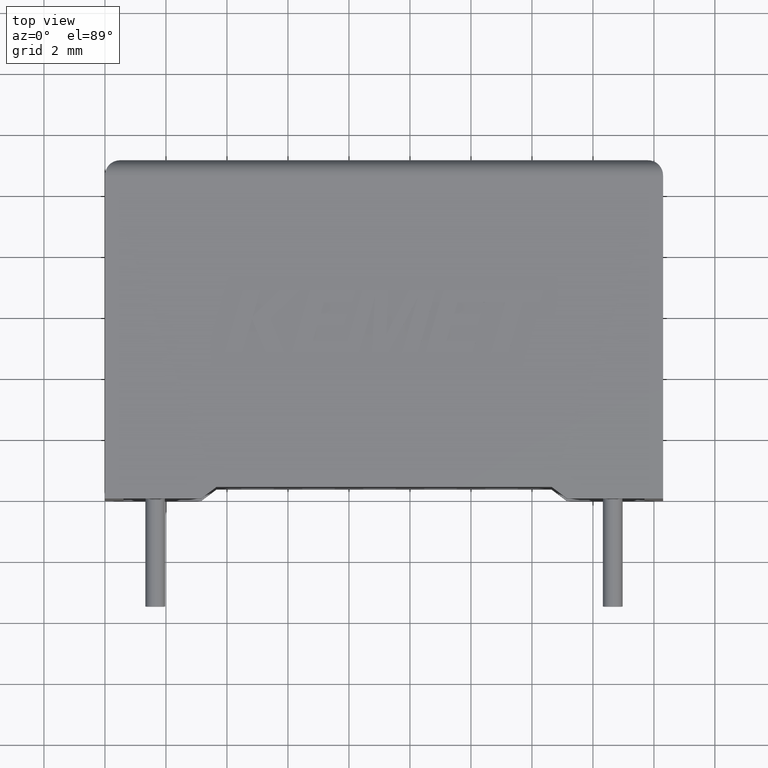
[diagram: clean part render]
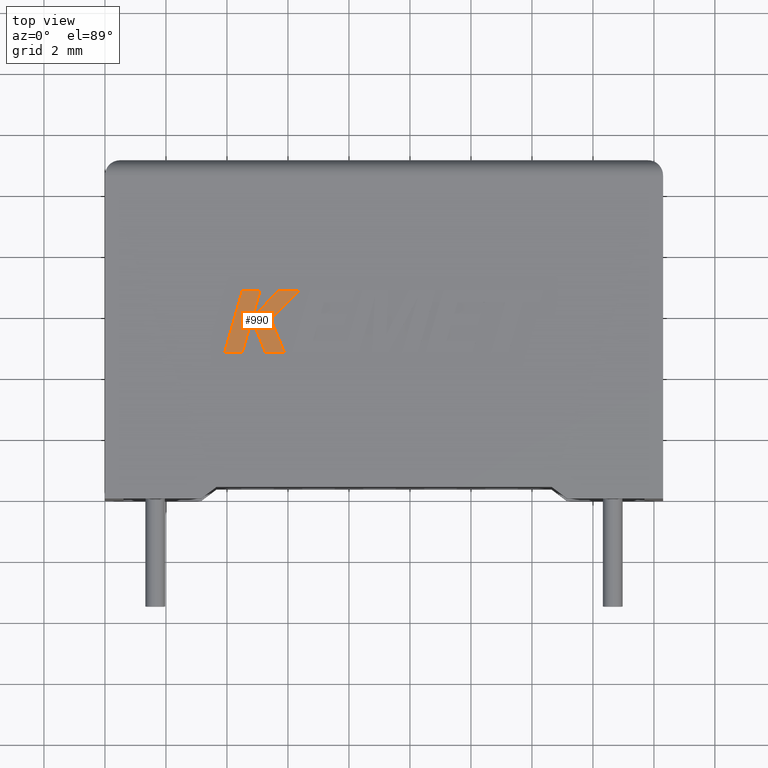
[diagram: same view with one face highlighted and labeled with its STEP entity id]
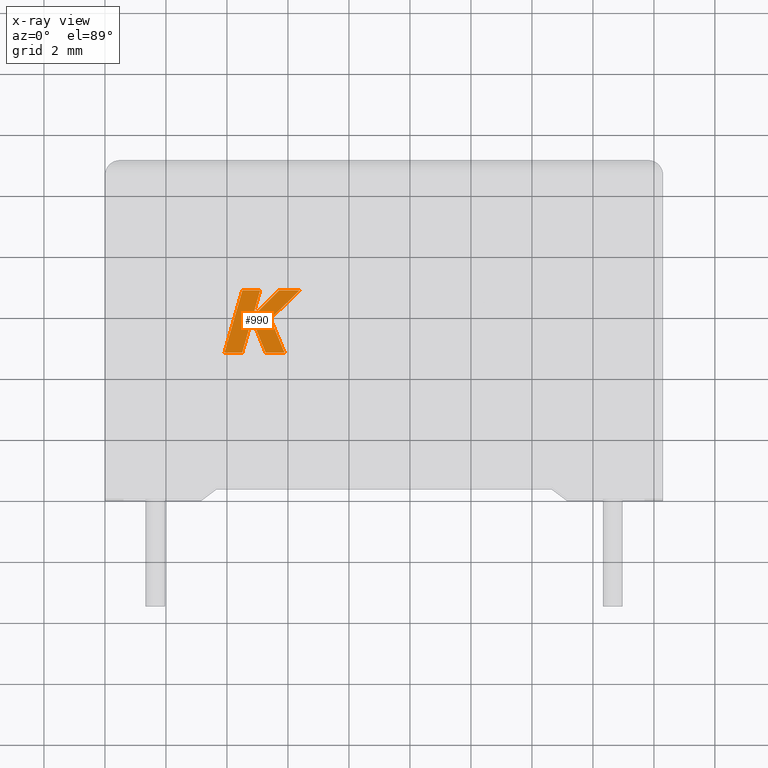
[diagram: x-ray of the same camera — body ghosted, the highlighted face saturated]
A machine part, top view. The second image highlights one B-rep face of the part: STEP entity #990.
The next image is the same camera in x-ray: the body ghosted, the highlighted face saturated — about 0% of this face is hidden behind the body in this view.
In plain terms, the highlighted planar face has unit normal (0, 0, -1).
Its self-contained STEP definition (entity closure, byte-faithful):
#39 = CARTESIAN_POINT ( 'NONE',  ( 4.507093781513865416, 6.826083738474082452, 5.204999999999999183 ) ) ;
#57 = DIRECTION ( 'NONE',  ( 0.000000000000000000, 0.000000000000000000, -1.000000000000000000 ) ) ;
#60 = DIRECTION ( 'NONE',  ( 0.3725077383643967122, -0.9280290862137037244, 0.000000000000000000 ) ) ;
#62 = CARTESIAN_POINT ( 'NONE',  ( 4.500886219942358046, 4.776329999999935794, 5.204999999999999183 ) ) ;
#76 = FACE_OUTER_BOUND ( 'NONE', #350, .T. ) ;
#99 = CARTESIAN_POINT ( 'NONE',  ( 5.090729064337726761, 6.826083738474082452, 5.204999999999999183 ) ) ;
#156 = DIRECTION ( 'NONE',  ( 0.2755265765475026218, 0.9612934544747576693, 0.000000000000000000 ) ) ;
#168 = VERTEX_POINT ( 'NONE', #1911 ) ;
#205 = CARTESIAN_POINT ( 'NONE',  ( 6.385852927493482767, 6.826083738474082452, 5.204999999999999183 ) ) ;
#242 = ORIENTED_EDGE ( 'NONE', *, *, #664, .T. ) ;
#249 = EDGE_CURVE ( 'NONE', #168, #1264, #859, .T. ) ;
#301 = CARTESIAN_POINT ( 'NONE',  ( 4.500886219942358046, 4.776329999999935794, 5.204999999999999183 ) ) ;
#306 = EDGE_CURVE ( 'NONE', #2544, #2318, #1699, .T. ) ;
#309 = EDGE_CURVE ( 'NONE', #732, #1491, #1076, .T. ) ;
#345 = CARTESIAN_POINT ( 'NONE',  ( 5.266622392236398831, 4.776329999999936682, 5.204999999999999183 ) ) ;
#350 = EDGE_LOOP ( 'NONE', ( #242, #1441, #1373, #1776, #2557, #1437, #2506, #1930, #876, #957, #793 ) ) ;
#351 = CARTESIAN_POINT ( 'NONE',  ( 4.840170505961883585, 5.951989497042054822, 5.204999999999999183 ) ) ;
#409 = CARTESIAN_POINT ( 'NONE',  ( 4.819883749744422019, 5.889290648786833948, 5.204999999999999183 ) ) ;
#643 = CARTESIAN_POINT ( 'NONE',  ( 5.711298082222258543, 6.826083738474082452, 5.204999999999999183 ) ) ;
#664 = EDGE_CURVE ( 'NONE', #2318, #732, #1029, .T. ) ;
#696 = DIRECTION ( 'NONE',  ( 1.000000000000000000, 0.000000000000000000, 0.000000000000000000 ) ) ;
#732 = VERTEX_POINT ( 'NONE', #3025 ) ;
#744 = EDGE_CURVE ( 'NONE', #1491, #1726, #878, .T. ) ;
#772 = VECTOR ( 'NONE', #2241, 1000.000000000000114 ) ;
#792 = LINE ( 'NONE', #2497, #2476 ) ;
#793 = ORIENTED_EDGE ( 'NONE', *, *, #306, .T. ) ;
#857 = EDGE_CURVE ( 'NONE', #1264, #2544, #1931, .T. ) ;
#859 = LINE ( 'NONE', #1219, #2527 ) ;
#869 = VECTOR ( 'NONE', #60, 1000.000000000000227 ) ;
#876 = ORIENTED_EDGE ( 'NONE', *, *, #249, .T. ) ;
#878 = LINE ( 'NONE', #409, #2729 ) ;
#883 = EDGE_CURVE ( 'NONE', #1915, #1421, #2593, .T. ) ;
#923 = LINE ( 'NONE', #643, #1159 ) ;
#957 = ORIENTED_EDGE ( 'NONE', *, *, #857, .T. ) ;
#962 = VECTOR ( 'NONE', #987, 1000.000000000000000 ) ;
#987 = DIRECTION ( 'NONE',  ( -1.000000000000000000, -0.000000000000000000, -0.000000000000000000 ) ) ;
#990 = ADVANCED_FACE ( 'NONE', ( #76 ), #2654, .F. ) ;
#1007 = CARTESIAN_POINT ( 'NONE',  ( -0.2224830842431323175, -1.858056502638177898, 5.204999999999997407 ) ) ;
#1029 = LINE ( 'NONE', #1599, #1515 ) ;
#1076 = LINE ( 'NONE', #62, #1358 ) ;
#1159 = VECTOR ( 'NONE', #2550, 1000.000000000000000 ) ;
#1219 = CARTESIAN_POINT ( 'NONE',  ( 4.840170505961883585, 5.951989497042054822, 5.204999999999999183 ) ) ;
#1246 = LINE ( 'NONE', #2353, #869 ) ;
#1264 = VERTEX_POINT ( 'NONE', #351 ) ;
#1315 = CARTESIAN_POINT ( 'NONE',  ( 6.385852927493482767, 6.826083738474082452, 5.204999999999999183 ) ) ;
#1354 = CARTESIAN_POINT ( 'NONE',  ( 5.428966288769919935, 5.889290648786848159, 5.204999999999999183 ) ) ;
#1358 = VECTOR ( 'NONE', #1924, 1000.000000000000000 ) ;
#1373 = ORIENTED_EDGE ( 'NONE', *, *, #744, .T. ) ;
#1379 = VERTEX_POINT ( 'NONE', #1354 ) ;
#1421 = VERTEX_POINT ( 'NONE', #2529 ) ;
#1425 = DIRECTION ( 'NONE',  ( 0.2755520632520602198, 0.9612861490927312458, 0.000000000000000000 ) ) ;
#1437 = ORIENTED_EDGE ( 'NONE', *, *, #1559, .T. ) ;
#1441 = ORIENTED_EDGE ( 'NONE', *, *, #309, .T. ) ;
#1491 = VERTEX_POINT ( 'NONE', #301 ) ;
#1497 = EDGE_CURVE ( 'NONE', #1726, #1915, #1246, .T. ) ;
#1503 = DIRECTION ( 'NONE',  ( -1.000000000000000000, 0.000000000000000000, 0.000000000000000000 ) ) ;
#1515 = VECTOR ( 'NONE', #2521, 1000.000000000000114 ) ;
#1559 = EDGE_CURVE ( 'NONE', #1421, #1379, #792, .T. ) ;
#1564 = LINE ( 'NONE', #1315, #772 ) ;
#1571 = DIRECTION ( 'NONE',  ( -0.7059037656364501867, -0.7083077534943971187, -0.000000000000000000 ) ) ;
#1599 = CARTESIAN_POINT ( 'NONE',  ( 3.918030000000000346, 4.776329999999999742, 5.204999999999999183 ) ) ;
#1643 = CARTESIAN_POINT ( 'NONE',  ( 4.819883749744422019, 5.889290648786833948, 5.204999999999999183 ) ) ;
#1660 = CARTESIAN_POINT ( 'NONE',  ( 5.890295190083761234, 4.776329999999936682, 5.204999999999999183 ) ) ;
#1699 = LINE ( 'NONE', #39, #962 ) ;
#1726 = VERTEX_POINT ( 'NONE', #1643 ) ;
#1732 = EDGE_CURVE ( 'NONE', #2628, #168, #923, .T. ) ;
#1759 = VECTOR ( 'NONE', #1425, 1000.000000000000000 ) ;
#1776 = ORIENTED_EDGE ( 'NONE', *, *, #1497, .T. ) ;
#1911 = CARTESIAN_POINT ( 'NONE',  ( 5.711298082222258543, 6.826083738474082452, 5.204999999999999183 ) ) ;
#1915 = VERTEX_POINT ( 'NONE', #345 ) ;
#1924 = DIRECTION ( 'NONE',  ( 1.000000000000000000, -1.104435275910379246E-13, 0.000000000000000000 ) ) ;
#1930 = ORIENTED_EDGE ( 'NONE', *, *, #1732, .T. ) ;
#1931 = LINE ( 'NONE', #2801, #1759 ) ;
#2141 = AXIS2_PLACEMENT_3D ( 'NONE', #1007, #57, #1503 ) ;
#2241 = DIRECTION ( 'NONE',  ( 0.7145695586382624365, 0.6995643972269591782, 0.000000000000000000 ) ) ;
#2318 = VERTEX_POINT ( 'NONE', #2482 ) ;
#2353 = CARTESIAN_POINT ( 'NONE',  ( 5.266622392236398831, 4.776329999999936682, 5.204999999999999183 ) ) ;
#2447 = DIRECTION ( 'NONE',  ( -0.3829140317376762970, 0.9237839814038765196, 0.000000000000000000 ) ) ;
#2476 = VECTOR ( 'NONE', #2447, 1000.000000000000114 ) ;
#2482 = CARTESIAN_POINT ( 'NONE',  ( 4.507093781513865416, 6.826083738474082452, 5.204999999999999183 ) ) ;
#2497 = CARTESIAN_POINT ( 'NONE',  ( 5.428966288769919935, 5.889290648786848159, 5.204999999999999183 ) ) ;
#2506 = ORIENTED_EDGE ( 'NONE', *, *, #2889, .T. ) ;
#2521 = DIRECTION ( 'NONE',  ( -0.2762033010252004650, -0.9610992334315860974, -0.000000000000000000 ) ) ;
#2527 = VECTOR ( 'NONE', #1571, 1000.000000000000114 ) ;
#2529 = CARTESIAN_POINT ( 'NONE',  ( 5.890295190083761234, 4.776329999999936682, 5.204999999999999183 ) ) ;
#2544 = VERTEX_POINT ( 'NONE', #99 ) ;
#2550 = DIRECTION ( 'NONE',  ( -1.000000000000000000, -0.000000000000000000, -0.000000000000000000 ) ) ;
#2557 = ORIENTED_EDGE ( 'NONE', *, *, #883, .T. ) ;
#2593 = LINE ( 'NONE', #1660, #2936 ) ;
#2628 = VERTEX_POINT ( 'NONE', #205 ) ;
#2654 = PLANE ( 'NONE',  #2141 ) ;
#2729 = VECTOR ( 'NONE', #156, 1000.000000000000114 ) ;
#2801 = CARTESIAN_POINT ( 'NONE',  ( 5.090729064337726761, 6.826083738474082452, 5.204999999999999183 ) ) ;
#2889 = EDGE_CURVE ( 'NONE', #1379, #2628, #1564, .T. ) ;
#2936 = VECTOR ( 'NONE', #696, 1000.000000000000000 ) ;
#3025 = CARTESIAN_POINT ( 'NONE',  ( 3.918030000000000346, 4.776329999999999742, 5.204999999999999183 ) ) ;